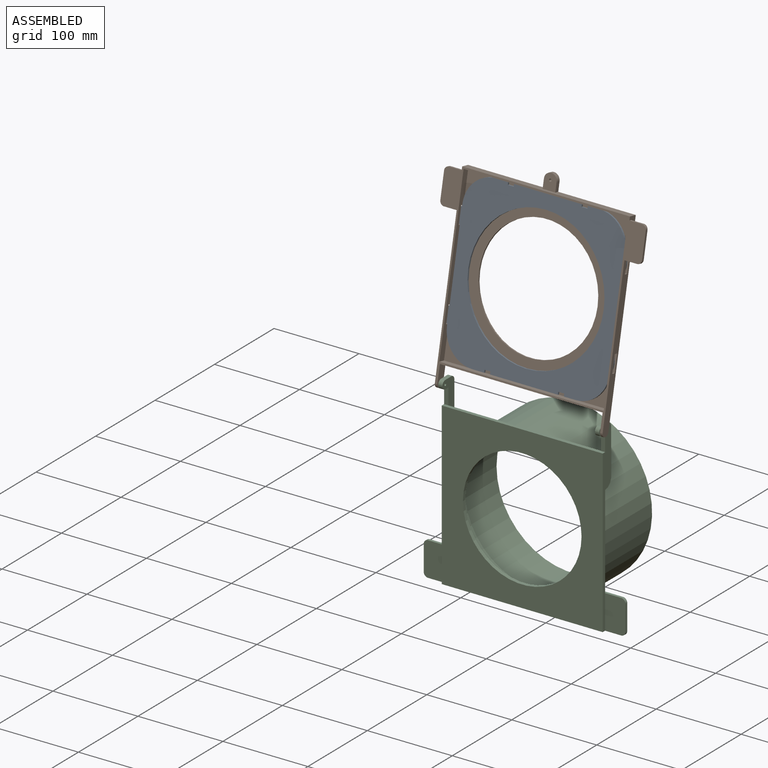
[diagram: assembled view]
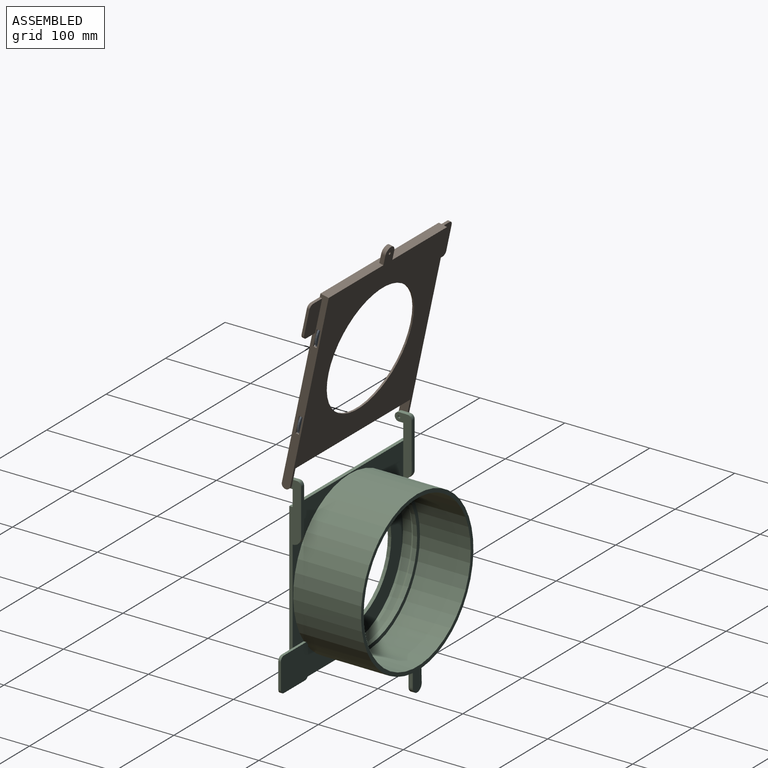
[diagram: assembled view, second angle]
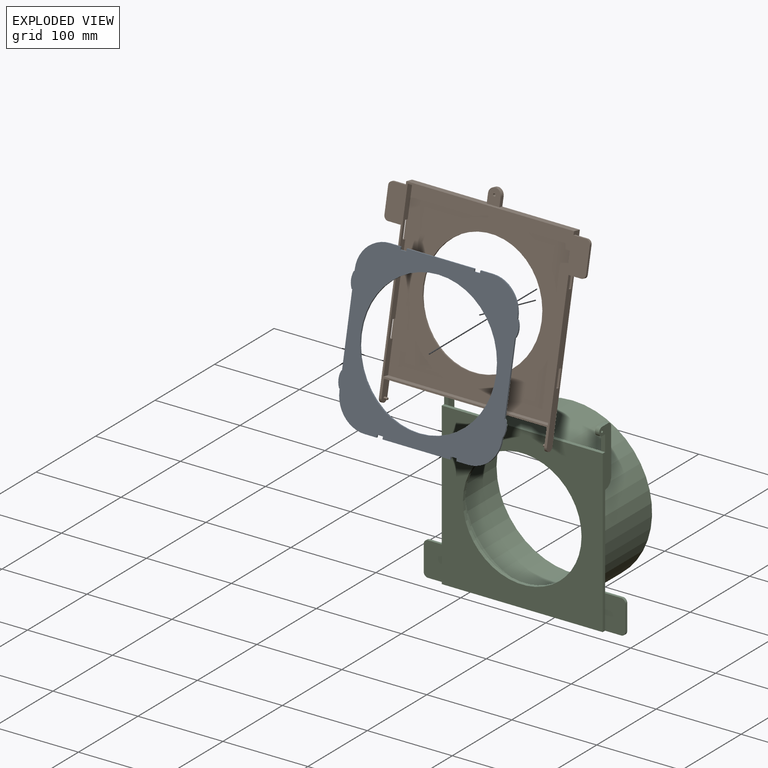
[diagram: exploded view]
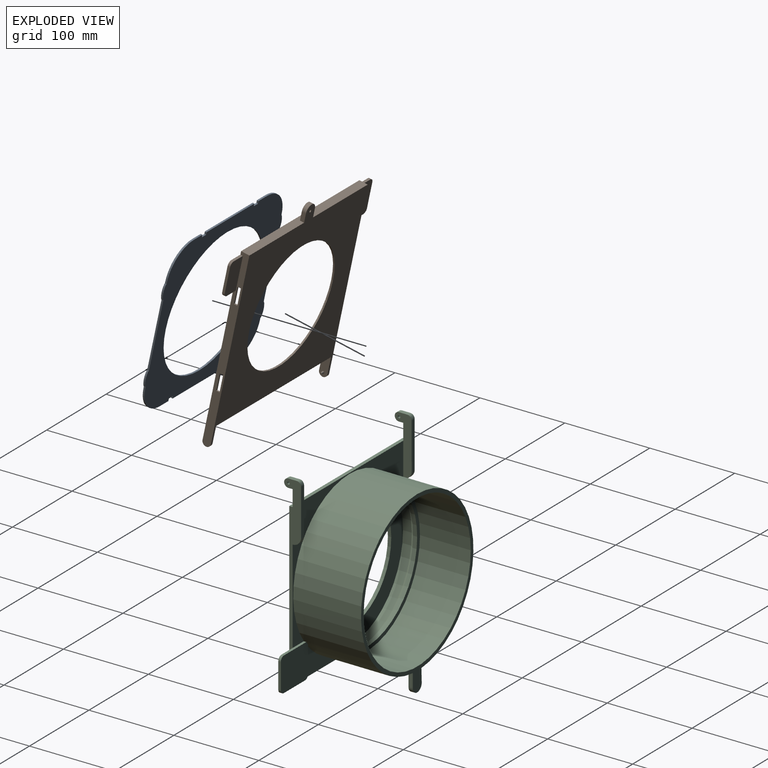
[diagram: exploded view, second angle]
ASSEMBLY  parts=3 mates=2
PART A: 43 faces, bbox 197.6x192x2 mm
  f0: plane 2x0.8mm, normal (0,1,0), area 1.6mm2, adj f1,f39,f41,f42
  f1: plane 2x2mm, normal (1,0,0), area 4mm2, adj f0,f2,f41,f42
  f2: cylinder r=35mm len=35mm, axis (0,0,-1), area 110mm2, adj f1,f3,f41,f42
  f3: plane 14x2mm, normal (0,1,0), area 28mm2, adj f2,f4,f41,f42
  f4: plane 3x2mm, normal (-1,0,0), area 6mm2, adj f3,f5,f41,f42
  f5: plane 7x2mm, normal (0,1,0), area 14mm2, adj f4,f6,f41,f42
  f6: plane 3x2mm, normal (1,0,0), area 6mm2, adj f5,f7,f41,f42
  f7: plane 80x2mm, normal (0,1,0), area 160mm2, adj f6,f8,f41,f42
  f8: plane 3x2mm, normal (-1,0,0), area 6mm2, adj f7,f9,f41,f42
  f9: plane 7x2mm, normal (0,1,0), area 14mm2, adj f8,f10,f41,f42
  f10: plane 3x2mm, normal (1,0,0), area 6mm2, adj f9,f11,f41,f42
  f11: plane 14x2mm, normal (0,1,0), area 28mm2, adj f10,f12,f41,f42
  f12: cylinder r=35mm len=35mm, axis (0,0,-1), area 110mm2, adj f11,f13,f41,f42
  f13: plane 2x2mm, normal (-1,0,0), area 4mm2, adj f12,f14,f41,f42
  f14: plane 2x0.8mm, normal (0,1,0), area 1.6mm2, adj f13,f15,f41,f42
  f15: cylinder r=21.25mm len=18mm, axis (0,0,-1), area 37.2mm2, adj f14,f16,f41,f42
  f16: plane 2x0.8mm, normal (0,-1,0), area 1.6mm2, adj f15,f17,f41,f42
  f17: plane 82x2mm, normal (-1,0,0), area 164mm2, adj f16,f18,f41,f42
  f18: plane 2x0.8mm, normal (0,1,0), area 1.6mm2, adj f17,f19,f41,f42
  f19: cylinder r=21.25mm len=18mm, axis (0,0,-1), area 37.2mm2, adj f18,f20,f41,f42
  f20: plane 2x0.8mm, normal (0,-1,0), area 1.6mm2, adj f19,f21,f41,f42
  f21: plane 2x2mm, normal (-1,0,0), area 4mm2, adj f20,f22,f41,f42
  f22: cylinder r=35mm len=35mm, axis (0,0,-1), area 110mm2, adj f21,f23,f41,f42
  f23: plane 14x2mm, normal (0,-1,0), area 28mm2, adj f22,f24,f41,f42
  f24: plane 3x2mm, normal (1,0,0), area 6mm2, adj f23,f25,f41,f42
  f25: plane 7x2mm, normal (0,-1,0), area 14mm2, adj f24,f26,f41,f42
  f26: plane 3x2mm, normal (-1,0,0), area 6mm2, adj f25,f27,f41,f42
  f27: plane 80x2mm, normal (0,-1,0), area 160mm2, adj f26,f28,f41,f42
  f28: plane 3x2mm, normal (1,0,0), area 6mm2, adj f27,f29,f41,f42
  f29: plane 7x2mm, normal (0,-1,0), area 14mm2, adj f28,f30,f41,f42
  f30: plane 3x2mm, normal (-1,0,0), area 6mm2, adj f29,f31,f41,f42
  f31: plane 14x2mm, normal (0,-1,0), area 28mm2, adj f30,f32,f41,f42
  f32: cylinder r=35mm len=35mm, axis (0,0,-1), area 110mm2, adj f31,f33,f41,f42
  f33: plane 2x2mm, normal (1,0,0), area 4mm2, adj f32,f34,f41,f42
  f34: plane 2x0.8mm, normal (0,-1,0), area 1.6mm2, adj f33,f35,f41,f42
  f35: cylinder r=21.25mm len=18mm, axis (0,0,-1), area 37.2mm2, adj f34,f36,f41,f42
  f36: plane 2x0.8mm, normal (0,1,0), area 1.6mm2, adj f35,f37,f41,f42
  f37: plane 82x2mm, normal (1,0,0), area 164mm2, adj f36,f38,f41,f42
  f38: plane 2x0.8mm, normal (0,-1,0), area 1.6mm2, adj f37,f39,f41,f42
  f39: cylinder r=21.25mm len=18mm, axis (0,0,-1), area 37.2mm2, adj f0,f38,f41,f42
  f40: cylinder r=80mm len=160mm, axis (0,0,-1), area 1005.3mm2, adj f41,f42
  f41: plane 197.6x192mm, normal (0,0,1), area 15776.8mm2, adj f0,f1,f2,f3,f4,f5,f6,f7
  f42: plane 197.6x192mm, normal (0,0,-1), area 15776.8mm2, adj f0,f1,f2,f3,f4,f5,f6,f7
PART B: 49 faces, bbox 238x241x10 mm
  f0: plane 223x10mm, normal (1,0,0), area 1939.3mm2, adj f4,f5,f17,f18,f20,f31,f35,f36
  f1: plane 194x8mm, normal (-1,0,0), area 1392mm2, adj f4,f6,f8,f18,f43,f44,f45,f46
  f2: plane 223x10mm, normal (-1,0,0), area 1939.3mm2, adj f4,f5,f17,f18,f19,f25,f26,f30
  f3: cylinder r=70mm len=140mm, axis (0,0,-1), area 879.6mm2, adj f4,f5
  f4: plane 198x194mm, normal (0,0,1), area 22402.2mm2, adj f0,f1,f2,f3,f6,f7,f8,f37
  f5: plane 236x198mm, normal (0,0,-1), area 24169mm2, adj f0,f2,f3,f9,f10,f11,f12,f14
  f6: plane 194x8mm, normal (0,-1,0), area 1552mm2, adj f1,f4,f7,f18
  f7: plane 194x8mm, normal (1,0,0), area 1392mm2, adj f4,f6,f8,f18,f37,f38,f39,f40
  f8: plane 194x8mm, normal (0,1,0), area 1552mm2, adj f1,f4,f7,f18
  f9: plane 10.5x5mm, normal (1,0,0), area 52.5mm2, adj f5,f10,f13,f17
  f10: cylinder r=7.5mm len=15mm, axis (0,0,-1), area 117.8mm2, adj f5,f9,f12,f13
  f11: cylinder r=1.5mm len=5mm, axis (0,0,-1), area 47.1mm2, adj f5,f13
  f12: plane 10.5x5mm, normal (-1,0,0), area 52.5mm2, adj f5,f10,f13,f17
  f13: plane 18x15mm, normal (0,0,1), area 238.8mm2, adj f9,f10,f11,f12,f17
  f14: plane 25x10mm, normal (1,0,0), area 234.4mm2, adj f5,f15,f18,f19,f21
  f15: plane 192x10mm, normal (0,-1,0), area 1920mm2, adj f5,f14,f16,f18
  f16: plane 25x10mm, normal (-1,0,0), area 234.4mm2, adj f5,f15,f18,f20,f23
  f17: plane 198x10mm, normal (0,1,0), area 1905mm2, adj f0,f2,f5,f9,f12,f13,f18
  f18: plane 238x218mm, normal (0,0,1), area 3266.5mm2, adj f0,f1,f2,f6,f7,f8,f14,f15
  f19: cylinder r=5mm len=10mm, axis (1,0,0), area 47.1mm2, adj f2,f5,f14,f18
  f20: cylinder r=5mm len=10mm, axis (1,0,0), area 47.1mm2, adj f0,f5,f16,f18
  f21: cylinder r=1.25mm len=4mm, axis (-1,0,0), area 31.4mm2, adj f14,f22
  f22: plane 2.5x2.5mm, normal (1,0,0), area 4.9mm2, adj f21
  f23: cylinder r=1.25mm len=4mm, axis (1,0,0), area 31.4mm2, adj f16,f24
  f24: plane 2.5x2.5mm, normal (-1,0,0), area 4.9mm2, adj f23
  f25: plane 15x3mm, normal (0,-1,0), area 45mm2, adj f2,f18,f29,f30
  f26: plane 15x3mm, normal (0,1,0), area 45mm2, adj f2,f18,f27,f30
  f27: cylinder r=5mm len=5mm, axis (0,0,1), area 23.6mm2, adj f18,f26,f28,f30
  f28: plane 30x3mm, normal (-1,0,0), area 90mm2, adj f18,f27,f29,f30
  f29: cylinder r=5mm len=5mm, axis (0,0,1), area 23.6mm2, adj f18,f25,f28,f30
  f30: plane 40x20mm, normal (0,0,-1), area 789.3mm2, adj f2,f25,f26,f27,f28,f29
  f31: plane 15x3mm, normal (0,-1,0), area 45mm2, adj f0,f18,f32,f36
  f32: cylinder r=5mm len=5mm, axis (0,0,1), area 23.6mm2, adj f18,f31,f33,f36
  f33: plane 30x3mm, normal (1,0,0), area 90mm2, adj f18,f32,f34,f36
  f34: cylinder r=5mm len=5mm, axis (0,0,1), area 23.6mm2, adj f18,f33,f35,f36
  f35: plane 15x3mm, normal (0,1,0), area 45mm2, adj f0,f18,f34,f36
  f36: plane 40x20mm, normal (0,0,-1), area 789.3mm2, adj f0,f31,f32,f33,f34,f35
  f37: plane 4x2mm, normal (0,1,0), area 8mm2, adj f2,f4,f7,f39
  f38: plane 4x2mm, normal (0,-1,0), area 8mm2, adj f2,f4,f7,f39
  f39: plane 20x2mm, normal (0,0,-1), area 40mm2, adj f2,f7,f37,f38
  f40: plane 4x2mm, normal (0,1,0), area 8mm2, adj f2,f4,f7,f42
  f41: plane 4x2mm, normal (0,-1,0), area 8mm2, adj f2,f4,f7,f42
  f42: plane 20x2mm, normal (0,0,-1), area 40mm2, adj f2,f7,f40,f41
  f43: plane 4x2mm, normal (0,-1,0), area 8mm2, adj f0,f1,f4,f45
  f44: plane 4x2mm, normal (0,1,0), area 8mm2, adj f0,f1,f4,f45
  f45: plane 20x2mm, normal (0,0,-1), area 40mm2, adj f0,f1,f43,f44
  f46: plane 4x2mm, normal (0,1,0), area 8mm2, adj f0,f1,f4,f47
  f47: plane 20x2mm, normal (0,0,-1), area 40mm2, adj f0,f1,f46,f48
  f48: plane 4x2mm, normal (0,-1,0), area 8mm2, adj f0,f1,f4,f47
PART C: 56 faces, bbox 238x241x90 mm
  f0: plane 190x150mm, normal (0,0,-1), area 4505.2mm2, adj f2,f3,f11,f13,f28,f32,f39,f42
  f1: plane 19x5mm, normal (0,0,1), area 95mm2, adj f2,f13,f39,f44
  f2: plane 219x20mm, normal (-1,0,0), area 1505.6mm2, adj f0,f1,f12,f13,f15,f31,f40,f41
  f3: cylinder r=94mm len=188mm, axis (0,0,-1), area 47150.7mm2, adj f0,f4,f6,f16,f18,f19,f23,f28
  f4: plane 157.17x36.51mm, normal (0,0,-1), area 1742.7mm2, adj f3,f12,f23,f24,f36,f37
  f5: cylinder r=89.6mm len=179.2mm, axis (0,0,-1), area 33778.4mm2, adj f6,f7
  f6: plane 211x188mm, normal (0,0,-1), area 2856.3mm2, adj f3,f5,f16,f17,f18
  f7: plane 179.2x179.2mm, normal (0,0,-1), area 2523.2mm2, adj f5,f8
  f8: cylinder r=85mm len=170mm, axis (0,0,-1), area 2670.4mm2, adj f7,f22
  f9: cylinder r=89.6mm len=179.2mm, axis (0,0,-1), area 5854.9mm2, adj f10,f22
  f10: plane 179.2x179.2mm, normal (0,0,-1), area 9827.4mm2, adj f9,f14
  f11: plane 219x20mm, normal (1,0,0), area 1505.6mm2, adj f0,f12,f13,f15,f30,f47,f48,f49
  f12: plane 228x7mm, normal (0,1,0), area 972.5mm2, adj f2,f4,f11,f15,f24,f25,f29,f30
  f13: plane 190x4mm, normal (0,-1,0), area 760mm2, adj f0,f1,f2,f11,f15,f47
  f14: cylinder r=70mm len=140mm, axis (0,0,-1), area 1759.3mm2, adj f10,f15
  f15: plane 190x190mm, normal (0,0,1), area 20706.2mm2, adj f2,f11,f12,f13,f14
  f16: plane 15.53x5mm, normal (1,-0.03,0), area 77.7mm2, adj f3,f6,f17,f19
  f17: cylinder r=7.5mm len=15mm, axis (0,0,-1), area 120.5mm2, adj f6,f16,f18,f19
  f18: plane 15.49x5mm, normal (-1,0,0), area 77.4mm2, adj f3,f6,f17,f19
  f19: plane 23.3x15mm, normal (0,0,1), area 298.8mm2, adj f3,f16,f17,f18,f20
  f20: cylinder r=2.5mm len=5mm, axis (0,0,1), area 47.1mm2, adj f19,f21
  f21: plane 5x5mm, normal (0,0,1), area 19.6mm2, adj f20
  f22: cone r=85mm half-angle=45deg, axis (0,0,1), area 3568.3mm2, adj f8,f9
  f23: plane 31.51x3mm, normal (-1,0,0), area 94.5mm2, adj f3,f4,f24,f29
  f24: cylinder r=5mm len=5mm, axis (0,0,1), area 23.6mm2, adj f4,f12,f23,f29
  f25: cylinder r=5mm len=5mm, axis (0,0,1), area 23.6mm2, adj f12,f26,f29,f30
  f26: plane 30x3mm, normal (1,0,0), area 90mm2, adj f25,f27,f29,f30
  f27: cylinder r=5mm len=5mm, axis (0,0,1), area 23.6mm2, adj f26,f28,f29,f30
  f28: plane 37.77x3mm, normal (0,-1,0), area 113.3mm2, adj f0,f3,f27,f29,f30
  f29: plane 45.41x40mm, normal (0,0,-1), area 1795.8mm2, adj f3,f12,f23,f24,f25,f26,f27,f28
  f30: plane 40x24mm, normal (0,0,1), area 949.3mm2, adj f11,f12,f25,f26,f27,f28
  f31: plane 40x24mm, normal (0,0,1), area 949.3mm2, adj f2,f12,f32,f33,f34,f35
  f32: plane 37.77x3mm, normal (0,-1,0), area 113.3mm2, adj f0,f3,f31,f33,f38
  f33: cylinder r=5mm len=5mm, axis (0,0,1), area 23.6mm2, adj f31,f32,f34,f38
  f34: plane 30x3mm, normal (-1,0,0), area 90mm2, adj f31,f33,f35,f38
  f35: cylinder r=5mm len=5mm, axis (0,0,1), area 23.6mm2, adj f12,f31,f34,f38
  f36: cylinder r=5mm len=5mm, axis (0,0,1), area 23.6mm2, adj f4,f12,f37,f38
  f37: plane 31.51x3mm, normal (1,0,0), area 94.5mm2, adj f3,f4,f36,f38
  f38: plane 45.41x40mm, normal (0,0,-1), area 1795.8mm2, adj f3,f12,f32,f33,f34,f35,f36,f37
  f39: plane 69x20mm, normal (1,0,0), area 745.6mm2, adj f0,f1,f40,f41,f42,f43,f44,f45
  f40: plane 10x5mm, normal (0,-1,0), area 50mm2, adj f2,f39,f43,f45
  f41: plane 54.87x5mm, normal (0,0,-1), area 274.3mm2, adj f2,f39,f42,f43
  f42: cylinder r=10.04mm len=10mm, axis (-1,0,0), area 74.3mm2, adj f0,f2,f39,f41
  f43: cylinder r=5mm len=5mm, axis (1,0,0), area 39.3mm2, adj f2,f39,f40,f41
  f44: plane 5x5mm, normal (0,1,0), area 25mm2, adj f1,f2,f39,f45
  f45: cylinder r=5mm len=10mm, axis (-1,0,0), area 78.5mm2, adj f2,f39,f40,f44
  f46: cylinder r=1.5mm len=5mm, axis (-1,0,0), area 47.1mm2, adj f2,f39
  f47: plane 19x5mm, normal (0,0,1), area 95mm2, adj f11,f13,f48,f55
  f48: plane 5x5mm, normal (0,1,0), area 25mm2, adj f11,f47,f49,f55
  f49: cylinder r=5mm len=10mm, axis (1,0,0), area 78.5mm2, adj f11,f48,f50,f55
  f50: plane 10x5mm, normal (0,-1,0), area 50mm2, adj f11,f49,f51,f55
  f51: cylinder r=5mm len=5mm, axis (1,0,0), area 39.3mm2, adj f11,f50,f52,f55
  f52: plane 54.87x5mm, normal (0,0,-1), area 274.3mm2, adj f11,f51,f54,f55
  f53: cylinder r=1.5mm len=5mm, axis (1,0,0), area 47.1mm2, adj f11,f55
  f54: cylinder r=10.04mm len=10mm, axis (1,0,0), area 74.3mm2, adj f0,f11,f52,f55
  f55: plane 69x20mm, normal (-1,0,0), area 745.6mm2, adj f0,f47,f48,f49,f50,f51,f52,f53
PLACE A rot(axis=(1,0,0),77.9deg) t=(-0.86,-13.2,237.6)mm
PLACE B rot(axis=(1,0,0),77.9deg) t=(-0.85,-9.29,236.77)mm
PLACE C rot(axis=(0,-0.71,0.71),179.8deg) t=(-0.72,45.93,2.44)mm fixed
MATE fastened B.f3 <-> A.f40  axis (0,-0.98,0.21) through (-0.85,-11.24,237.18)mm
MATE revolute C.f45 <-> B.f23  axis (1,0,0) through (94.01,-39.4,121.41)mm
